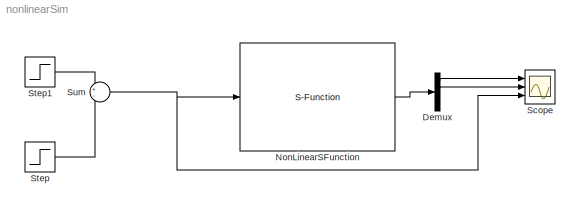
MODEL nonlinearSim
KIND model
BLOCK [Demux] Demux
  DisplayOption = bar
  Ports = [1, 4]
  SID = 109
BLOCK [S-Function] NonLinearSFunction
  EnableBusSupport = off
  FunctionName = NonLinearModel
  Parameters = [pi/2,0,0,0],[11.9253 0.4203 0.1455 7.2462 1.8150 35.1492 0.0089]
  Ports = [1, 1]
  SFcnIsStateOwnerBlock = off
  SFunctionDeploymentMode = off
  SID = 61
BLOCK [Scope] Scope
  Floating = off
  NumInputPorts = 3
  Ports = [3]
  SID = 99
  ScopeSpecificationString = Simulink.scopes.TimeScopeBlockCfg('CurrentConfiguration', extmgr.ConfigurationSet(extmgr.Configuration('Core','General UI',true,'FigureColor',[0.941176470588235 0.941176470588235 0.941176470588235]),extmgr.Configuration('Core','Source UI',true),extmgr.Configuration('Sources','WiredSimulink',true,'DataLoggingSaveFormat','StructureWithTime','DataLoggingLimitDataPoints',true,'DataLoggingDecimation','...<+5230ch>
BLOCK [Step] Step
  After = 0.5
  SID = 117
  SampleTime = 0
  Time = 0.1
BLOCK [Step] Step1
  After = 0.5
  SID = 119
  SampleTime = 0
  Time = 0
BLOCK [Sum] Sum
  IconShape = round
  InputSameDT = off
  Inputs = +-
  OutDataTypeStr = Inherit: Inherit via internal rule
  Ports = [2, 1]
  SID = 116
  SaturateOnIntegerOverflow = off
LINE Demux:1 -> Scope:1
LINE Demux:2 -> Scope:2
LINE NonLinearSFunction:1 -> Demux:1
LINE Step1:1 -> Sum:1
LINE Step:1 -> Sum:2
NET Sum:1 -> NonLinearSFunction:1, Scope:3
note: NET lines group one-source signal fan-out (src -> all destinations, sorted); 1:1 wires keep LINE
